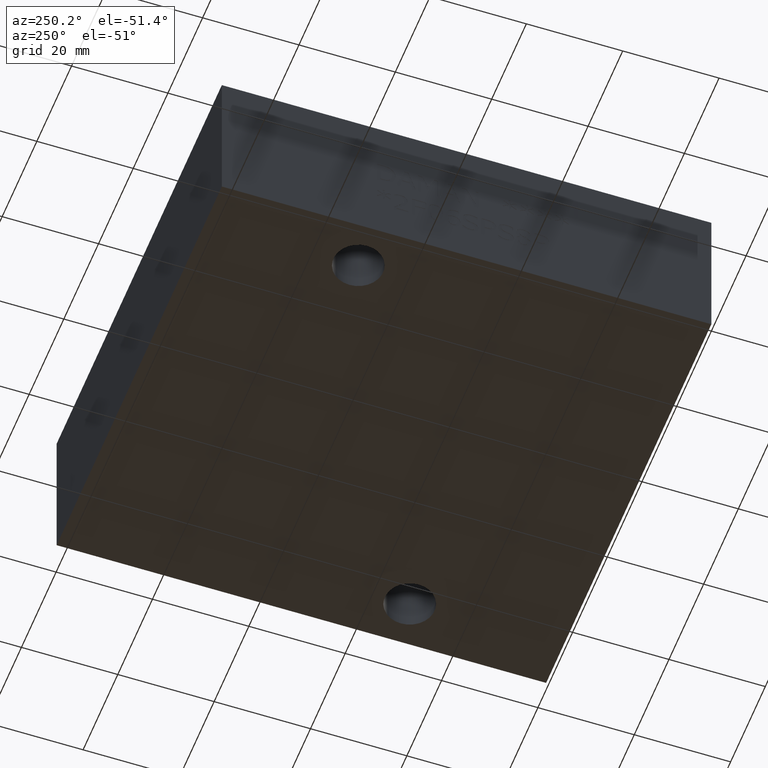
[diagram: clean part render]
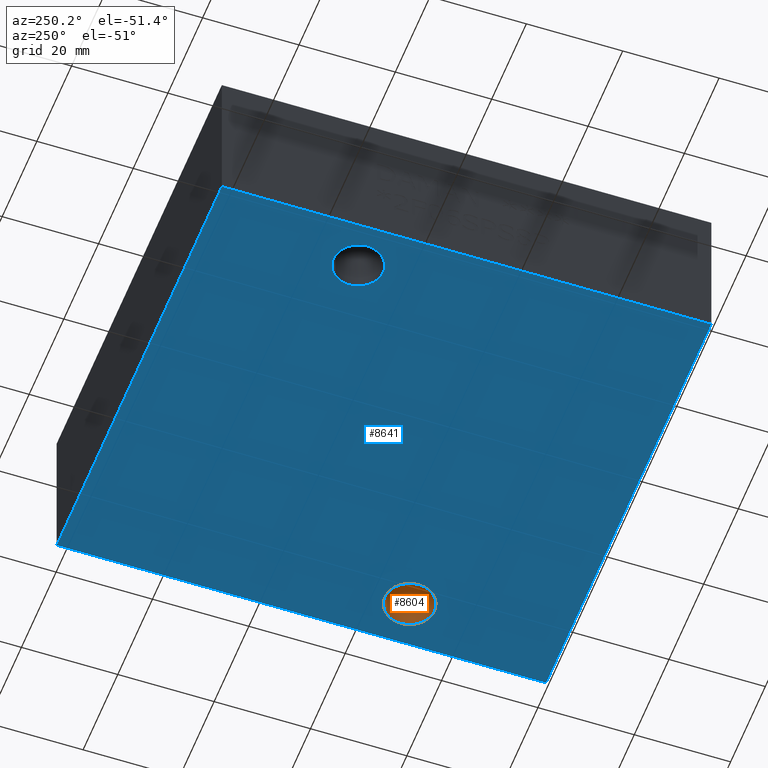
[diagram: same view with the hole feature highlighted: cylindrical wall and planar end face, labeled with their STEP entity ids]
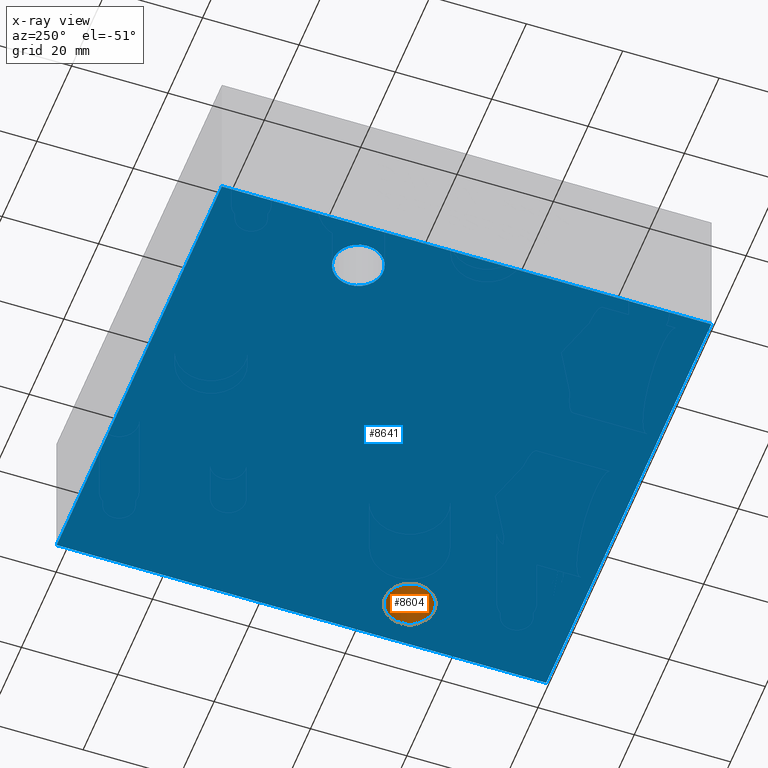
[diagram: x-ray of the same camera — body ghosted, the hole faces saturated]
A machine part, auxiliary view. The highlighted faces form one hole feature of diameter 10.3124 mm: the cylindrical wall (entity #8604, orange) and its adjacent planar end face (entity #8641, blue) — they share a circular edge in the B-rep.
The next image is the same camera in x-ray (body ghosted, the hole faces saturated) — the bore reads through the body.
Wall:
#25=CYLINDRICAL_SURFACE('',#8929,5.1562);
#50=CIRCLE('',#8921,5.1562);
#56=CIRCLE('',#8930,5.1562);
#830=FACE_OUTER_BOUND('',#1304,.T.);
#1304=EDGE_LOOP('',(#7491,#7492,#7493,#7494));
#2170=LINE('',#14640,#3012);
#3012=VECTOR('',#10380,5.1562);
#4055=VERTEX_POINT('',#14623);
#4061=VERTEX_POINT('',#14639);
#5220=EDGE_CURVE('',#4055,#4055,#50,.T.);
#5227=EDGE_CURVE('',#4055,#4061,#2170,.T.);
#5228=EDGE_CURVE('',#4061,#4061,#56,.T.);
#7491=ORIENTED_EDGE('',*,*,#5220,.T.);
#7492=ORIENTED_EDGE('',*,*,#5227,.T.);
#7493=ORIENTED_EDGE('',*,*,#5228,.F.);
#7494=ORIENTED_EDGE('',*,*,#5227,.F.);
#8604=ADVANCED_FACE('',(#830),#25,.F.);
#8921=AXIS2_PLACEMENT_3D('',#14624,#10361,#10362);
#8929=AXIS2_PLACEMENT_3D('',#14638,#10378,#10379);
#8930=AXIS2_PLACEMENT_3D('',#14641,#10381,#10382);
#10361=DIRECTION('center_axis',(0.,0.,1.));
#10362=DIRECTION('ref_axis',(1.,0.,0.));
#10378=DIRECTION('center_axis',(0.,0.,1.));
#10379=DIRECTION('ref_axis',(1.,0.,0.));
#10380=DIRECTION('',(0.,0.,-1.));
#10381=DIRECTION('center_axis',(0.,0.,1.));
#10382=DIRECTION('ref_axis',(1.,0.,0.));
#14623=CARTESIAN_POINT('',(80.5688,31.75,17.526));
#14624=CARTESIAN_POINT('Origin',(85.725,31.75,17.526));
#14638=CARTESIAN_POINT('Origin',(85.725,31.75,-111.089717865865));
#14639=CARTESIAN_POINT('',(80.5688,31.75,0.));
#14640=CARTESIAN_POINT('',(80.5688,31.75,-111.089717865865));
#14641=CARTESIAN_POINT('Origin',(85.725,31.75,0.));
End face:
#56=CIRCLE('',#8930,5.1562);
#57=CIRCLE('',#8932,5.1562);
#161=FACE_BOUND('',#1357,.T.);
#162=FACE_BOUND('',#1358,.T.);
#431=PLANE('',#9018);
#867=FACE_OUTER_BOUND('',#1356,.T.);
#1356=EDGE_LOOP('',(#7676,#7677,#7678,#7679));
#1357=EDGE_LOOP('',(#7680));
#1358=EDGE_LOOP('',(#7681));
#1654=LINE('',#13046,#2496);
#2165=LINE('',#14600,#3007);
#2196=LINE('',#14812,#3038);
#2199=LINE('',#14817,#3041);
#2496=VECTOR('',#9462,10.);
#3007=VECTOR('',#10337,10.);
#3038=VECTOR('',#10576,10.);
#3041=VECTOR('',#10581,10.);
#3663=VERTEX_POINT('',#13044);
#3664=VERTEX_POINT('',#13045);
#4045=VERTEX_POINT('',#14599);
#4061=VERTEX_POINT('',#14639);
#4062=VERTEX_POINT('',#14643);
#4122=VERTEX_POINT('',#14811);
#4637=EDGE_CURVE('',#3663,#3664,#1654,.T.);
#5208=EDGE_CURVE('',#3664,#4045,#2165,.T.);
#5228=EDGE_CURVE('',#4061,#4061,#56,.T.);
#5230=EDGE_CURVE('',#4062,#4062,#57,.T.);
#5305=EDGE_CURVE('',#4122,#3663,#2196,.T.);
#5308=EDGE_CURVE('',#4045,#4122,#2199,.T.);
#7676=ORIENTED_EDGE('',*,*,#5208,.F.);
#7677=ORIENTED_EDGE('',*,*,#4637,.F.);
#7678=ORIENTED_EDGE('',*,*,#5305,.F.);
#7679=ORIENTED_EDGE('',*,*,#5308,.F.);
#7680=ORIENTED_EDGE('',*,*,#5228,.T.);
#7681=ORIENTED_EDGE('',*,*,#5230,.T.);
#8641=ADVANCED_FACE('',(#867,#161,#162),#431,.F.);
#8930=AXIS2_PLACEMENT_3D('',#14641,#10381,#10382);
#8932=AXIS2_PLACEMENT_3D('',#14645,#10386,#10387);
#9018=AXIS2_PLACEMENT_3D('',#14821,#10587,#10588);
#9462=DIRECTION('',(0.,-1.,0.));
#10337=DIRECTION('',(1.,0.,0.));
#10381=DIRECTION('center_axis',(0.,0.,1.));
#10382=DIRECTION('ref_axis',(1.,0.,0.));
#10386=DIRECTION('center_axis',(0.,0.,1.));
#10387=DIRECTION('ref_axis',(1.,0.,0.));
#10576=DIRECTION('',(-1.,0.,0.));
#10581=DIRECTION('',(0.,1.,0.));
#10587=DIRECTION('center_axis',(0.,0.,1.));
#10588=DIRECTION('ref_axis',(1.,0.,0.));
#13044=CARTESIAN_POINT('',(0.,101.6,0.));
#13045=CARTESIAN_POINT('',(0.,0.,0.));
#13046=CARTESIAN_POINT('',(0.,101.6,0.));
#14599=CARTESIAN_POINT('',(95.25,0.,0.));
#14600=CARTESIAN_POINT('',(0.,0.,0.));
#14639=CARTESIAN_POINT('',(80.5688,31.75,0.));
#14641=CARTESIAN_POINT('Origin',(85.725,31.75,0.));
#14643=CARTESIAN_POINT('',(4.3688,69.85,0.));
#14645=CARTESIAN_POINT('Origin',(9.525,69.85,0.));
#14811=CARTESIAN_POINT('',(95.25,101.6,0.));
#14812=CARTESIAN_POINT('',(95.25,101.6,0.));
#14817=CARTESIAN_POINT('',(95.25,0.,0.));
#14821=CARTESIAN_POINT('Origin',(47.625,50.8,0.));